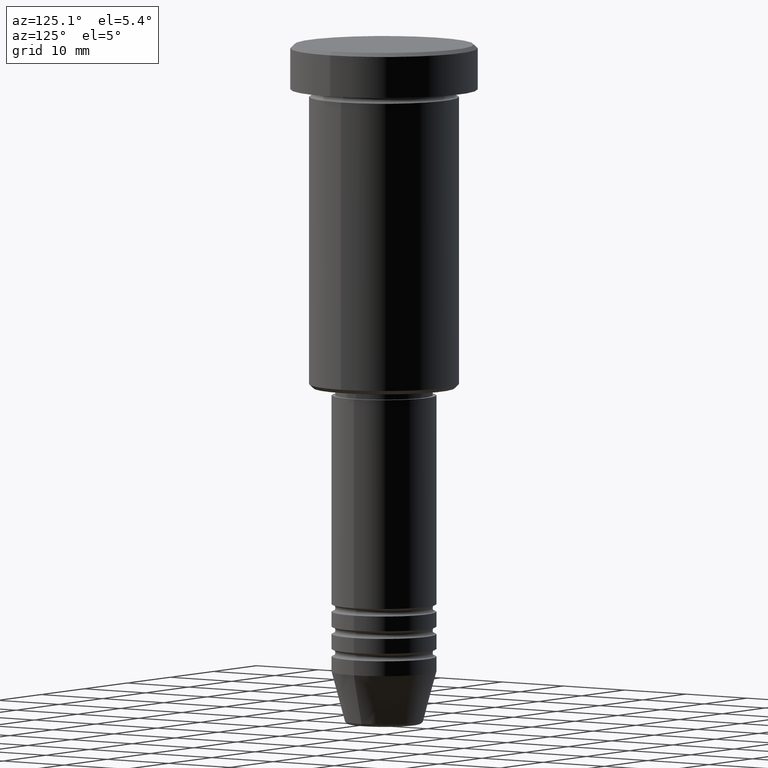
[diagram: clean part render]
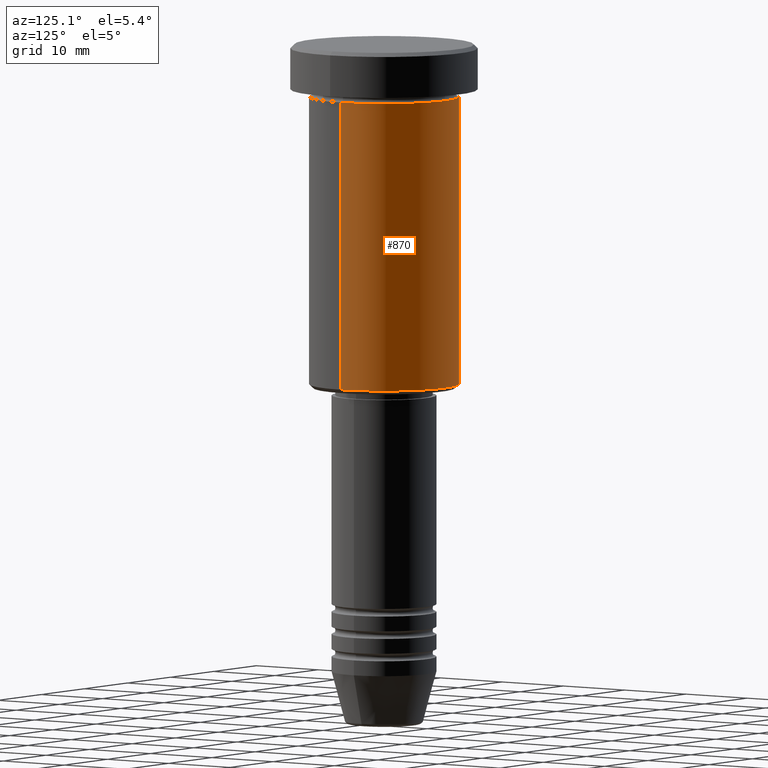
[diagram: same view with one face highlighted and labeled with its STEP entity id]
A machine part, auxiliary view. The second image highlights one B-rep face of the part: STEP entity #870.
In plain terms, the highlighted cylindrical surface (partial cylindrical patch) has radius 10 mm, axis along (-0, -0, 1).
Its self-contained STEP definition (entity closure, byte-faithful):
#3 = VERTEX_POINT ( 'NONE', #1012 ) ;
#15 = VERTEX_POINT ( 'NONE', #403 ) ;
#64 = DIRECTION ( 'NONE',  ( 1.000000000000000000, 0.000000000000000000, 0.000000000000000000 ) ) ;
#99 = CARTESIAN_POINT ( 'NONE',  ( 10.00000000000000000, 0.000000000000000000, -45.50000000000002132 ) ) ;
#109 = AXIS2_PLACEMENT_3D ( 'NONE', #1030, #1148, #568 ) ;
#126 = EDGE_CURVE ( 'NONE', #1111, #723, #927, .T. ) ;
#136 = EDGE_CURVE ( 'NONE', #1111, #15, #1132, .T. ) ;
#280 = CIRCLE ( 'NONE', #734, 10.00000000000000000 ) ;
#285 = EDGE_LOOP ( 'NONE', ( #673, #678, #407, #1038 ) ) ;
#378 = DIRECTION ( 'NONE',  ( -1.000000000000000000, 0.000000000000000000, 0.000000000000000000 ) ) ;
#396 = DIRECTION ( 'NONE',  ( -0.000000000000000000, -0.000000000000000000, 1.000000000000000000 ) ) ;
#403 = CARTESIAN_POINT ( 'NONE',  ( 10.00000000000000000, 0.000000000000000000, -6.999999999999996447 ) ) ;
#407 = ORIENTED_EDGE ( 'NONE', *, *, #700, .F. ) ;
#537 = DIRECTION ( 'NONE',  ( -0.000000000000000000, -0.000000000000000000, 1.000000000000000000 ) ) ;
#568 = DIRECTION ( 'NONE',  ( 1.000000000000000000, 0.000000000000000000, 0.000000000000000000 ) ) ;
#616 = DIRECTION ( 'NONE',  ( -0.000000000000000000, -0.000000000000000000, 1.000000000000000000 ) ) ;
#653 = FACE_OUTER_BOUND ( 'NONE', #285, .T. ) ;
#673 = ORIENTED_EDGE ( 'NONE', *, *, #126, .T. ) ;
#678 = ORIENTED_EDGE ( 'NONE', *, *, #1075, .T. ) ;
#700 = EDGE_CURVE ( 'NONE', #15, #3, #280, .T. ) ;
#723 = VERTEX_POINT ( 'NONE', #882 ) ;
#728 = CARTESIAN_POINT ( 'NONE',  ( -10.00000000000000000, 1.224646799147353256E-15, 0.000000000000000000 ) ) ;
#734 = AXIS2_PLACEMENT_3D ( 'NONE', #996, #537, #64 ) ;
#736 = DIRECTION ( 'NONE',  ( -0.000000000000000000, -0.000000000000000000, 1.000000000000000000 ) ) ;
#737 = CYLINDRICAL_SURFACE ( 'NONE', #109, 10.00000000000000000 ) ;
#834 = CARTESIAN_POINT ( 'NONE',  ( 0.000000000000000000, 0.000000000000000000, -45.50000000000002132 ) ) ;
#860 = VECTOR ( 'NONE', #736, 1000.000000000000000 ) ;
#870 = ADVANCED_FACE ( 'NONE', ( #653 ), #737, .T. ) ;
#871 = LINE ( 'NONE', #728, #957 ) ;
#882 = CARTESIAN_POINT ( 'NONE',  ( -10.00000000000000000, 1.224646799147353256E-15, -45.50000000000002132 ) ) ;
#927 = CIRCLE ( 'NONE', #1083, 10.00000000000000000 ) ;
#957 = VECTOR ( 'NONE', #616, 1000.000000000000000 ) ;
#996 = CARTESIAN_POINT ( 'NONE',  ( 0.000000000000000000, 0.000000000000000000, -6.999999999999996447 ) ) ;
#1012 = CARTESIAN_POINT ( 'NONE',  ( -10.00000000000000000, 1.224646799147353256E-15, -6.999999999999996447 ) ) ;
#1016 = CARTESIAN_POINT ( 'NONE',  ( 10.00000000000000000, 0.000000000000000000, 0.000000000000000000 ) ) ;
#1030 = CARTESIAN_POINT ( 'NONE',  ( 0.000000000000000000, 0.000000000000000000, 0.000000000000000000 ) ) ;
#1038 = ORIENTED_EDGE ( 'NONE', *, *, #136, .F. ) ;
#1075 = EDGE_CURVE ( 'NONE', #723, #3, #871, .T. ) ;
#1083 = AXIS2_PLACEMENT_3D ( 'NONE', #834, #396, #378 ) ;
#1111 = VERTEX_POINT ( 'NONE', #99 ) ;
#1132 = LINE ( 'NONE', #1016, #860 ) ;
#1148 = DIRECTION ( 'NONE',  ( -0.000000000000000000, -0.000000000000000000, 1.000000000000000000 ) ) ;